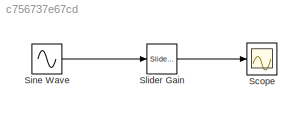
MODEL slx_c756737e67cd
KIND model
BLOCK [Scope] Scope
  DataFormat = StructureWithTime
  Floating = off
  NumInputPorts = 1
  Ports = [1]
  SampleTime = 0
  ShowLegends = off
  YMax = 2
  YMin = -2
BLOCK [Sin] Sine Wave
  Ports = [0, 1]
  SampleTime = 1/100
  Samples = 50
  SineType = Sample based
BLOCK [Reference] Slider Gain  REF=simulink/Math
Operations/Slider
Gain
  Ports = [1, 1]
  SourceBlock = simulink/Math\nOperations/Slider\nGain
  SourceType = Slider Gain
  gain = 1.1797
  high = 2
  low = 0
LINE Sine Wave:1 -> Slider Gain:1
LINE Slider Gain:1 -> Scope:1
